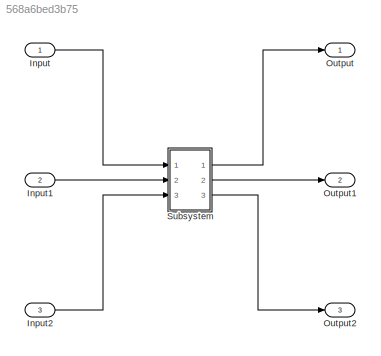
MODEL slx_568a6bed3b75
KIND model
CONFIG AbsTol = auto
CONFIG EnableMultiTasking = off
CONFIG FixedStep = auto
CONFIG MaxStep = auto
CONFIG MinStep = auto
CONFIG RelTol = 1e-3
CONFIG SampleTimeConstraint = Unconstrained
CONFIG Solver = FixedStepDiscrete
CONFIG SolverName = FixedStepDiscrete
CONFIG StartTime = 0.0
CONFIG StopTime = 10.0
BLOCK [Inport] Input
  IconDisplay = Port number
  OutDataTypeStr = uint8
BLOCK [Inport] Input1
  IconDisplay = Port number
  OutDataTypeStr = uint8
  Port = 2
BLOCK [Inport] Input2
  IconDisplay = Port number
  OutDataTypeStr = uint8
  Port = 3
BLOCK [Outport] Output
  IconDisplay = Port number
BLOCK [Outport] Output1
  IconDisplay = Port number
  Port = 2
BLOCK [Outport] Output2
  IconDisplay = Port number
  Port = 3
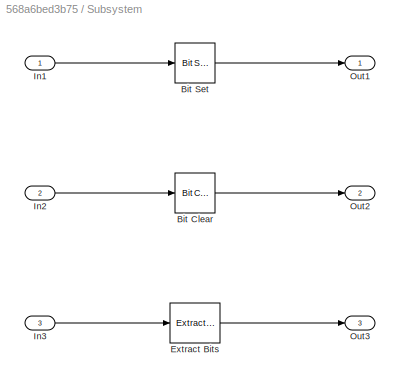
BLOCK [SubSystem] Subsystem
  Ports = [3, 3]
  RequestExecContextInheritance = off
BLOCK [Reference] Subsystem/Bit Clear  REF=simulink/Logic and Bit
Operations/Bit Clear
  Ports = [1, 1]
  SourceBlock = simulink/Logic and Bit\nOperations/Bit Clear
  SourceProductBaseCode = SL
  SourceProductName = Simulink
  SourceType = Bit Clear
BLOCK [Reference] Subsystem/Bit Set  REF=simulink/Logic and Bit
Operations/Bit Set
  Ports = [1, 1]
  SourceBlock = simulink/Logic and Bit\nOperations/Bit Set
  SourceProductBaseCode = SL
  SourceProductName = Simulink
  SourceType = Bit Set
BLOCK [Reference] Subsystem/Extract Bits  REF=simulink/Logic and Bit
Operations/Extract Bits
  Ports = [1, 1]
  SourceBlock = simulink/Logic and Bit\nOperations/Extract Bits
  SourceProductBaseCode = SL
  SourceProductName = Simulink
  SourceType = Extract Bits
BLOCK [Inport] Subsystem/In1
  IconDisplay = Port number
BLOCK [Inport] Subsystem/In2
  IconDisplay = Port number
  Port = 2
BLOCK [Inport] Subsystem/In3
  IconDisplay = Port number
  Port = 3
BLOCK [Outport] Subsystem/Out1
  IconDisplay = Port number
BLOCK [Outport] Subsystem/Out2
  IconDisplay = Port number
  Port = 2
BLOCK [Outport] Subsystem/Out3
  IconDisplay = Port number
  Port = 3
LINE Input1:1 -> Subsystem:2
LINE Input2:1 -> Subsystem:3
LINE Input:1 -> Subsystem:1
LINE Subsystem/Bit Clear:1 -> Subsystem/Out2:1
LINE Subsystem/Bit Set:1 -> Subsystem/Out1:1
LINE Subsystem/Extract Bits:1 -> Subsystem/Out3:1
LINE Subsystem/In1:1 -> Subsystem/Bit Set:1
LINE Subsystem/In2:1 -> Subsystem/Bit Clear:1
LINE Subsystem/In3:1 -> Subsystem/Extract Bits:1
LINE Subsystem:1 -> Output:1
LINE Subsystem:2 -> Output1:1
LINE Subsystem:3 -> Output2:1
